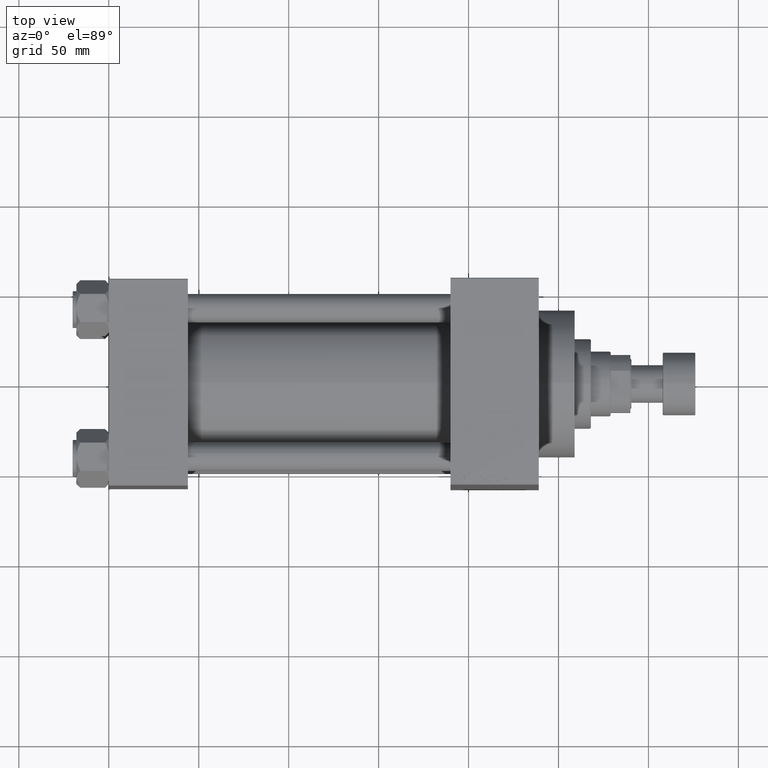
[diagram: clean part render]
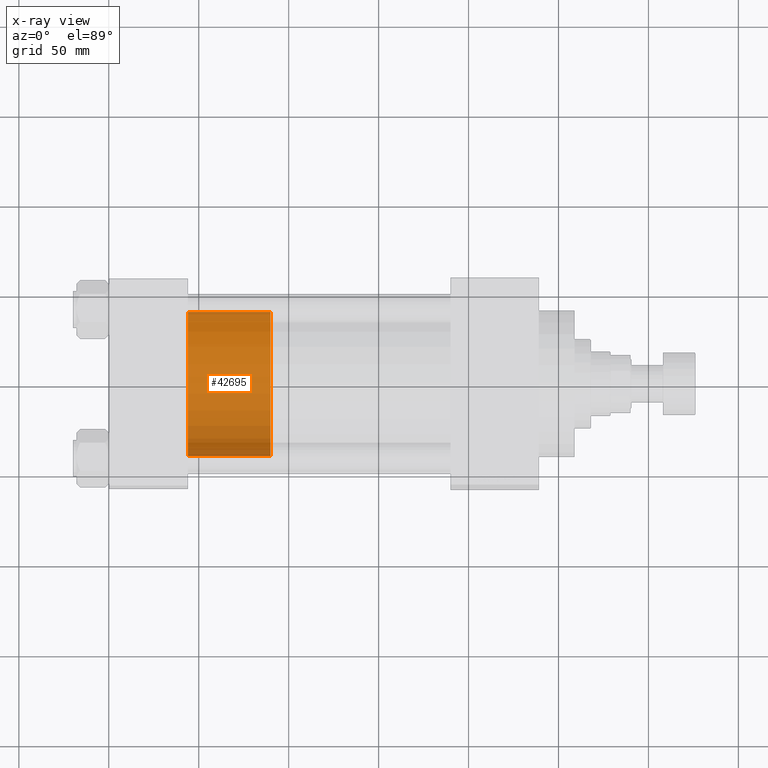
[diagram: x-ray — body ghosted, one internal face saturated and labeled with its STEP entity id]
A machine part, top view, then the same camera in x-ray: the body is ghosted and one INTERNAL B-rep face — a face not visible from any outside direction — is saturated and labeled: STEP entity #42695.
In plain terms, the highlighted cylindrical surface (partial cylindrical patch) has radius 40 mm, axis along (-1, 0, 0).
Its self-contained STEP definition (entity closure, byte-faithful):
#776 = ORIENTED_EDGE ( 'NONE', *, *, #34422, .T. ) ;
#3360 = VECTOR ( 'NONE', #10110, 1000.000000000000000 ) ;
#4458 = CARTESIAN_POINT ( 'NONE',  ( 0.000000000000000000, 0.000000000000000000, 0.000000000000000000 ) ) ;
#7000 = DIRECTION ( 'NONE',  ( 0.000000000000000000, 0.000000000000000000, 1.000000000000000000 ) ) ;
#9756 = LINE ( 'NONE', #35939, #14315 ) ;
#10110 = DIRECTION ( 'NONE',  ( -0.000000000000000000, -0.000000000000000000, -1.000000000000000000 ) ) ;
#10610 = AXIS2_PLACEMENT_3D ( 'NONE', #33426, #7000, #14082 ) ;
#13521 = VERTEX_POINT ( 'NONE', #17460 ) ;
#14082 = DIRECTION ( 'NONE',  ( 1.000000000000000000, 0.000000000000000000, 0.000000000000000000 ) ) ;
#14167 = DIRECTION ( 'NONE',  ( -1.000000000000000000, 0.000000000000000000, 0.000000000000000000 ) ) ;
#14315 = VECTOR ( 'NONE', #36186, 1000.000000000000000 ) ;
#15040 = VERTEX_POINT ( 'NONE', #24379 ) ;
#16297 = ORIENTED_EDGE ( 'NONE', *, *, #45276, .T. ) ;
#17335 = AXIS2_PLACEMENT_3D ( 'NONE', #43741, #36444, #14167 ) ;
#17442 = CARTESIAN_POINT ( 'NONE',  ( -40.00000000000000000, 0.000000000000000000, 46.00000000000000000 ) ) ;
#17460 = CARTESIAN_POINT ( 'NONE',  ( 40.00000000000000000, 4.898587196589413026E-15, 46.00000000000000000 ) ) ;
#21504 = CYLINDRICAL_SURFACE ( 'NONE', #17335, 40.00000000000000000 ) ;
#23176 = ORIENTED_EDGE ( 'NONE', *, *, #44615, .F. ) ;
#23886 = VERTEX_POINT ( 'NONE', #47120 ) ;
#24046 = CARTESIAN_POINT ( 'NONE',  ( -40.00000000000000000, 0.000000000000000000, 46.00000000000000000 ) ) ;
#24379 = CARTESIAN_POINT ( 'NONE',  ( -40.00000000000000000, 0.000000000000000000, 0.000000000000000000 ) ) ;
#25653 = EDGE_CURVE ( 'NONE', #13521, #32498, #41856, .T. ) ;
#28468 = LINE ( 'NONE', #17442, #3360 ) ;
#32498 = VERTEX_POINT ( 'NONE', #24046 ) ;
#33426 = CARTESIAN_POINT ( 'NONE',  ( 0.000000000000000000, 0.000000000000000000, 46.00000000000000000 ) ) ;
#34422 = EDGE_CURVE ( 'NONE', #23886, #15040, #45254, .T. ) ;
#35939 = CARTESIAN_POINT ( 'NONE',  ( 40.00000000000000000, 4.898587196589413026E-15, 46.00000000000000000 ) ) ;
#36186 = DIRECTION ( 'NONE',  ( -0.000000000000000000, -0.000000000000000000, -1.000000000000000000 ) ) ;
#36444 = DIRECTION ( 'NONE',  ( -0.000000000000000000, -0.000000000000000000, -1.000000000000000000 ) ) ;
#38632 = ORIENTED_EDGE ( 'NONE', *, *, #25653, .F. ) ;
#40307 = EDGE_LOOP ( 'NONE', ( #38632, #16297, #776, #23176 ) ) ;
#41856 = CIRCLE ( 'NONE', #10610, 40.00000000000000000 ) ;
#42695 = ADVANCED_FACE ( 'NONE', ( #44475 ), #21504, .T. ) ;
#43692 = AXIS2_PLACEMENT_3D ( 'NONE', #4458, #45523, #46004 ) ;
#43741 = CARTESIAN_POINT ( 'NONE',  ( 0.000000000000000000, 0.000000000000000000, 46.00000000000000000 ) ) ;
#44475 = FACE_OUTER_BOUND ( 'NONE', #40307, .T. ) ;
#44615 = EDGE_CURVE ( 'NONE', #32498, #15040, #28468, .T. ) ;
#45254 = CIRCLE ( 'NONE', #43692, 40.00000000000000000 ) ;
#45276 = EDGE_CURVE ( 'NONE', #13521, #23886, #9756, .T. ) ;
#45523 = DIRECTION ( 'NONE',  ( 0.000000000000000000, 0.000000000000000000, 1.000000000000000000 ) ) ;
#46004 = DIRECTION ( 'NONE',  ( 1.000000000000000000, 0.000000000000000000, 0.000000000000000000 ) ) ;
#47120 = CARTESIAN_POINT ( 'NONE',  ( 40.00000000000000000, 4.898587196589413026E-15, 0.000000000000000000 ) ) ;